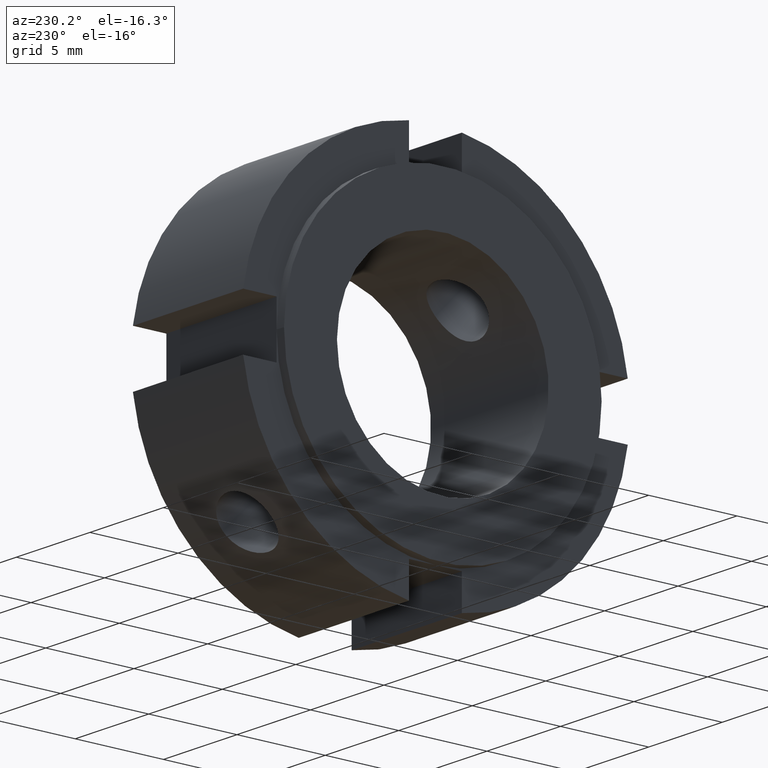
[diagram: clean part render]
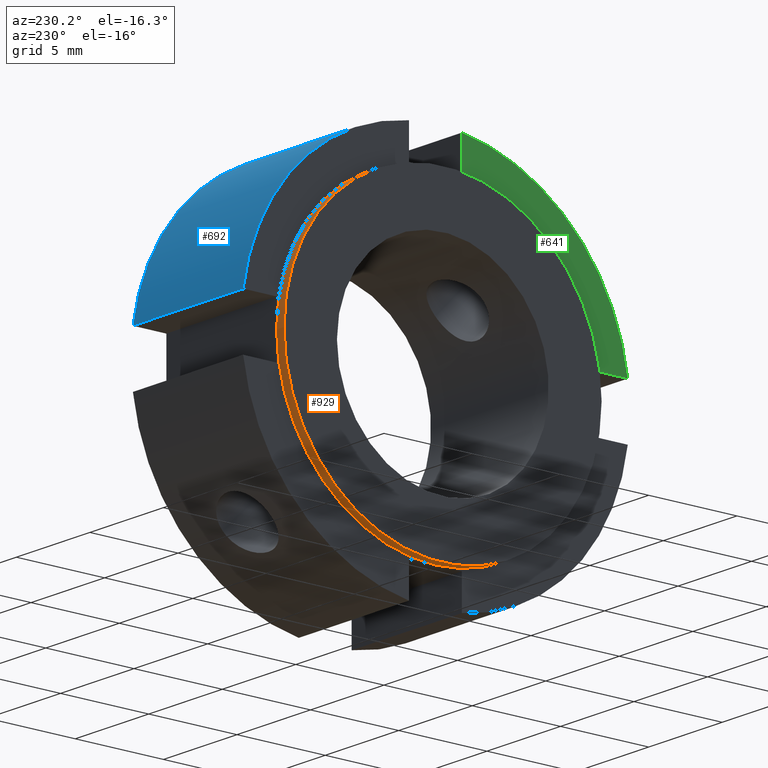
[diagram: same view with three faces highlighted in distinct colors, each labeled with its STEP entity id]
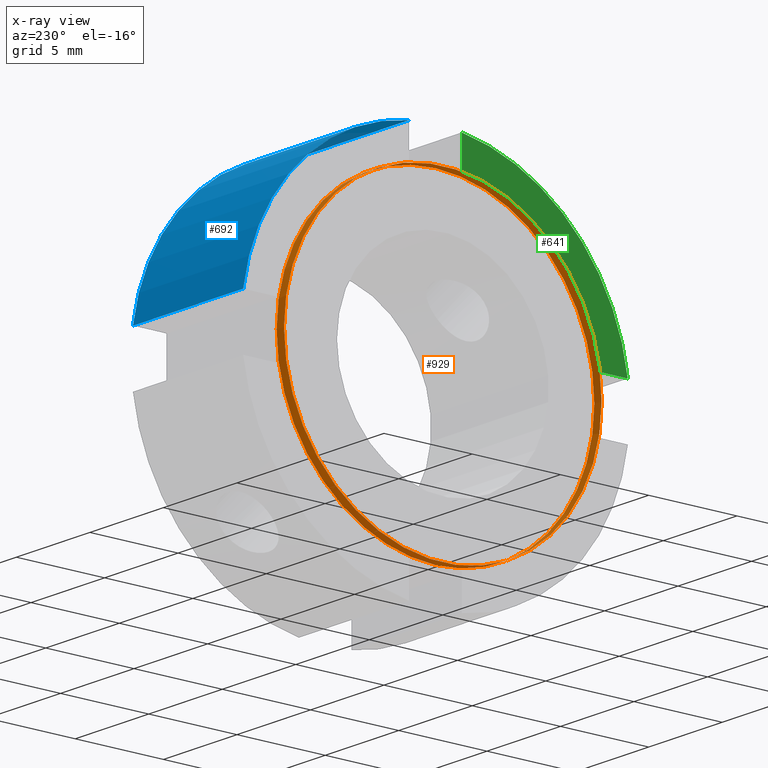
[diagram: x-ray of the same camera — body ghosted, the three highlighted faces saturated]
A machine part, auxiliary view with three faces highlighted in distinct colors.
The next image is the same camera in x-ray (body ghosted, the three faces saturated) — at least one of them is partly hidden behind the body in this view.
Their STEP definitions:

[orange] entity #929 — the highlighted cylindrical surface (bore or boss wall) has radius 9 mm, axis along (1, 0, 0).
#329=CARTESIAN_POINT('',(0.499999999999998,-1.665335E-015,-8.999999999999996));
#330=VERTEX_POINT('',#329);
#439=CARTESIAN_POINT('',(0.499999999999998,-8.999999999999996,1.110223E-015));
#440=VERTEX_POINT('',#439);
#549=CARTESIAN_POINT('',(0.499999999999998,5.551115E-016,8.999999999999996));
#550=VERTEX_POINT('',#549);
#598=CARTESIAN_POINT('',(0.499999999999998,8.999999999999996,0.0));
#599=VERTEX_POINT('',#598);
#606=CARTESIAN_POINT('',(0.499999999999998,0.0,0.0));
#607=DIRECTION('',(1.0,0.0,0.0));
#608=DIRECTION('',(0.0,1.0,0.0));
#609=AXIS2_PLACEMENT_3D('',#606,#607,#608);
#610=CIRCLE('',#609,8.999999999999996);
#611=EDGE_CURVE('',#599,#550,#610,.T.);
#632=CARTESIAN_POINT('',(0.499999999999998,0.0,0.0));
#633=DIRECTION('',(1.0,0.0,0.0));
#634=DIRECTION('',(0.0,1.0,0.0));
#635=AXIS2_PLACEMENT_3D('',#632,#633,#634);
#636=CIRCLE('',#635,8.999999999999996);
#637=EDGE_CURVE('',#550,#440,#636,.T.);
#658=CARTESIAN_POINT('',(0.499999999999998,0.0,0.0));
#659=DIRECTION('',(1.0,0.0,0.0));
#660=DIRECTION('',(0.0,1.0,0.0));
#661=AXIS2_PLACEMENT_3D('',#658,#659,#660);
#662=CIRCLE('',#661,8.999999999999996);
#663=EDGE_CURVE('',#440,#330,#662,.T.);
#886=CARTESIAN_POINT('',(0.0,8.999999999999996,0.0));
#887=VERTEX_POINT('',#886);
#888=CARTESIAN_POINT('',(0.0,0.0,0.0));
#889=DIRECTION('',(1.0,0.0,0.0));
#890=DIRECTION('',(0.0,1.0,0.0));
#891=AXIS2_PLACEMENT_3D('',#888,#889,#890);
#892=CIRCLE('',#891,8.999999999999996);
#893=EDGE_CURVE('',#887,#887,#892,.T.);
#909=CARTESIAN_POINT('',(0.249999999999999,0.0,0.0));
#910=DIRECTION('',(1.0,0.0,0.0));
#911=DIRECTION('',(0.0,1.0,0.0));
#912=AXIS2_PLACEMENT_3D('',#909,#910,#911);
#913=CYLINDRICAL_SURFACE('',#912,8.999999999999996);
#914=ORIENTED_EDGE('',*,*,#611,.F.);
#915=CARTESIAN_POINT('',(0.499999999999998,0.0,0.0));
#916=DIRECTION('',(1.0,0.0,0.0));
#917=DIRECTION('',(0.0,1.0,0.0));
#918=AXIS2_PLACEMENT_3D('',#915,#916,#917);
#919=CIRCLE('',#918,8.999999999999996);
#920=EDGE_CURVE('',#330,#599,#919,.T.);
#921=ORIENTED_EDGE('',*,*,#920,.F.);
#922=ORIENTED_EDGE('',*,*,#663,.F.);
#923=ORIENTED_EDGE('',*,*,#637,.F.);
#924=EDGE_LOOP('',(#914,#921,#922,#923));
#925=FACE_OUTER_BOUND('',#924,.T.);
#926=ORIENTED_EDGE('',*,*,#893,.T.);
#927=EDGE_LOOP('',(#926));
#928=FACE_BOUND('',#927,.T.);
#929=ADVANCED_FACE('',(#925,#928),#913,.T.);

[blue] entity #692 — the highlighted cylindrical surface (partial cylindrical patch) has radius 11 mm, axis along (1, 0, 0).
#471=CARTESIAN_POINT('',(0.499999999999998,1.500000000000000,10.897247358851681));
#472=VERTEX_POINT('',#471);
#487=CARTESIAN_POINT('',(7.999999999999998,1.500000000000001,10.897247358851681));
#488=VERTEX_POINT('',#487);
#495=CARTESIAN_POINT('',(0.499999999999998,1.500000000000001,10.897247358851681));
#496=DIRECTION('',(1.0,0.0,0.0));
#497=VECTOR('',#496,7.500000000000000);
#498=LINE('',#495,#497);
#499=EDGE_CURVE('',#472,#488,#498,.T.);
#581=CARTESIAN_POINT('',(0.499999999999998,10.897247358851681,1.500000000000000));
#582=VERTEX_POINT('',#581);
#583=CARTESIAN_POINT('',(0.499999999999998,0.0,0.0));
#584=DIRECTION('',(1.0,0.0,0.0));
#585=DIRECTION('',(0.0,1.0,0.0));
#586=AXIS2_PLACEMENT_3D('',#583,#584,#585);
#587=CIRCLE('',#586,10.999999999999996);
#588=EDGE_CURVE('',#582,#472,#587,.T.);
#668=CARTESIAN_POINT('',(4.249999999999998,0.0,0.0));
#669=DIRECTION('',(1.0,0.0,0.0));
#670=DIRECTION('',(0.0,1.0,0.0));
#671=AXIS2_PLACEMENT_3D('',#668,#669,#670);
#672=CYLINDRICAL_SURFACE('',#671,10.999999999999996);
#673=ORIENTED_EDGE('',*,*,#499,.T.);
#674=CARTESIAN_POINT('',(7.999999999999998,10.897247358851681,1.500000000000000));
#675=VERTEX_POINT('',#674);
#676=CARTESIAN_POINT('',(7.999999999999998,0.0,0.0));
#677=DIRECTION('',(1.0,0.0,0.0));
#678=DIRECTION('',(0.0,1.0,0.0));
#679=AXIS2_PLACEMENT_3D('',#676,#677,#678);
#680=CIRCLE('',#679,10.999999999999996);
#681=EDGE_CURVE('',#675,#488,#680,.T.);
#682=ORIENTED_EDGE('',*,*,#681,.F.);
#683=CARTESIAN_POINT('',(7.999999999999998,10.897247358851681,1.500000000000000));
#684=DIRECTION('',(-1.0,0.0,0.0));
#685=VECTOR('',#684,7.500000000000000);
#686=LINE('',#683,#685);
#687=EDGE_CURVE('',#675,#582,#686,.T.);
#688=ORIENTED_EDGE('',*,*,#687,.T.);
#689=ORIENTED_EDGE('',*,*,#588,.T.);
#690=EDGE_LOOP('',(#673,#682,#688,#689));
#691=FACE_OUTER_BOUND('',#690,.T.);
#692=ADVANCED_FACE('',(#691),#672,.T.);

[green] entity #641 — the highlighted planar face has unit normal (-1, 0, 0).
#359=CARTESIAN_POINT('',(0.499999999999998,-8.999999999999996,1.500000000000001));
#360=VERTEX_POINT('',#359);
#361=CARTESIAN_POINT('',(0.499999999999998,-10.897247358851681,1.500000000000001));
#362=VERTEX_POINT('',#361);
#363=CARTESIAN_POINT('',(0.499999999999998,-8.999999999999996,1.500000000000001));
#364=DIRECTION('',(0.0,-1.0,0.0));
#365=VECTOR('',#364,1.897247358851685);
#366=LINE('',#363,#365);
#367=EDGE_CURVE('',#360,#362,#366,.T.);
#439=CARTESIAN_POINT('',(0.499999999999998,-8.999999999999996,1.110223E-015));
#440=VERTEX_POINT('',#439);
#455=CARTESIAN_POINT('',(0.499999999999998,-8.999999999999996,1.110223E-015));
#456=DIRECTION('',(0.0,0.0,1.0));
#457=VECTOR('',#456,1.500000000000000);
#458=LINE('',#455,#457);
#459=EDGE_CURVE('',#440,#360,#458,.T.);
#509=CARTESIAN_POINT('',(0.499999999999998,-1.500000000000000,10.897247358851681));
#510=VERTEX_POINT('',#509);
#511=CARTESIAN_POINT('',(0.499999999999998,-1.500000000000000,8.999999999999996));
#512=VERTEX_POINT('',#511);
#513=CARTESIAN_POINT('',(0.499999999999998,-1.500000000000000,10.897247358851679));
#514=DIRECTION('',(0.0,0.0,-1.0));
#515=VECTOR('',#514,1.897247358851683);
#516=LINE('',#513,#515);
#517=EDGE_CURVE('',#510,#512,#516,.T.);
#549=CARTESIAN_POINT('',(0.499999999999998,5.551115E-016,8.999999999999996));
#550=VERTEX_POINT('',#549);
#551=CARTESIAN_POINT('',(0.499999999999998,-1.499999999999999,8.999999999999996));
#552=DIRECTION('',(0.0,1.0,0.0));
#553=VECTOR('',#552,1.500000000000000);
#554=LINE('',#551,#553);
#555=EDGE_CURVE('',#512,#550,#554,.T.);
#616=CARTESIAN_POINT('',(0.499999999999998,9.999999999999996,0.0));
#617=DIRECTION('',(-1.0,0.0,0.0));
#618=DIRECTION('',(0.0,0.0,1.0));
#619=AXIS2_PLACEMENT_3D('',#616,#617,#618);
#620=PLANE('',#619);
#621=ORIENTED_EDGE('',*,*,#459,.T.);
#622=ORIENTED_EDGE('',*,*,#367,.T.);
#623=CARTESIAN_POINT('',(0.499999999999998,0.0,0.0));
#624=DIRECTION('',(1.0,0.0,0.0));
#625=DIRECTION('',(0.0,1.0,0.0));
#626=AXIS2_PLACEMENT_3D('',#623,#624,#625);
#627=CIRCLE('',#626,10.999999999999996);
#628=EDGE_CURVE('',#510,#362,#627,.T.);
#629=ORIENTED_EDGE('',*,*,#628,.F.);
#630=ORIENTED_EDGE('',*,*,#517,.T.);
#631=ORIENTED_EDGE('',*,*,#555,.T.);
#632=CARTESIAN_POINT('',(0.499999999999998,0.0,0.0));
#633=DIRECTION('',(1.0,0.0,0.0));
#634=DIRECTION('',(0.0,1.0,0.0));
#635=AXIS2_PLACEMENT_3D('',#632,#633,#634);
#636=CIRCLE('',#635,8.999999999999996);
#637=EDGE_CURVE('',#550,#440,#636,.T.);
#638=ORIENTED_EDGE('',*,*,#637,.T.);
#639=EDGE_LOOP('',(#621,#622,#629,#630,#631,#638));
#640=FACE_OUTER_BOUND('',#639,.T.);
#641=ADVANCED_FACE('',(#640),#620,.T.);